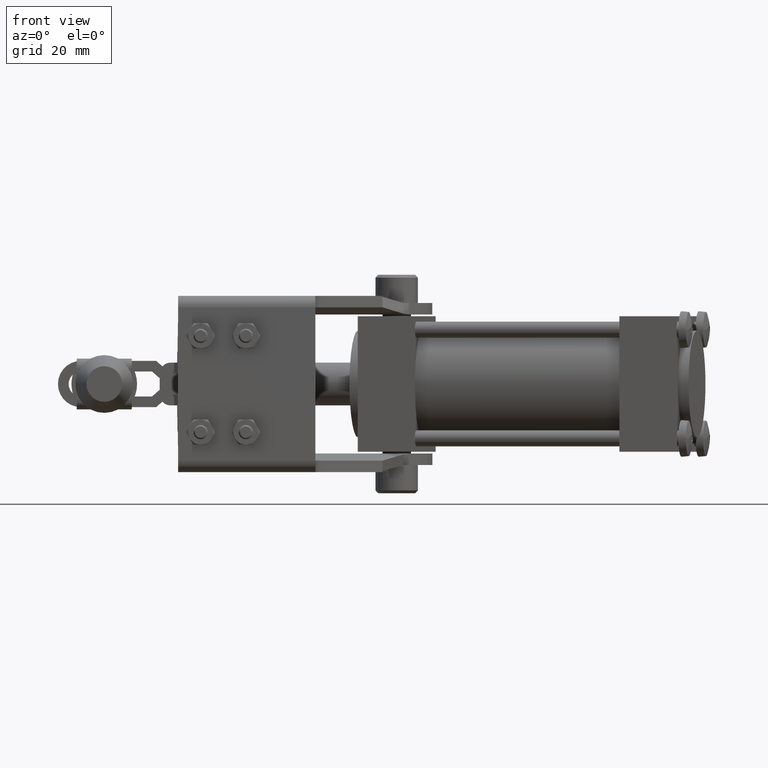
[diagram: clean part render]
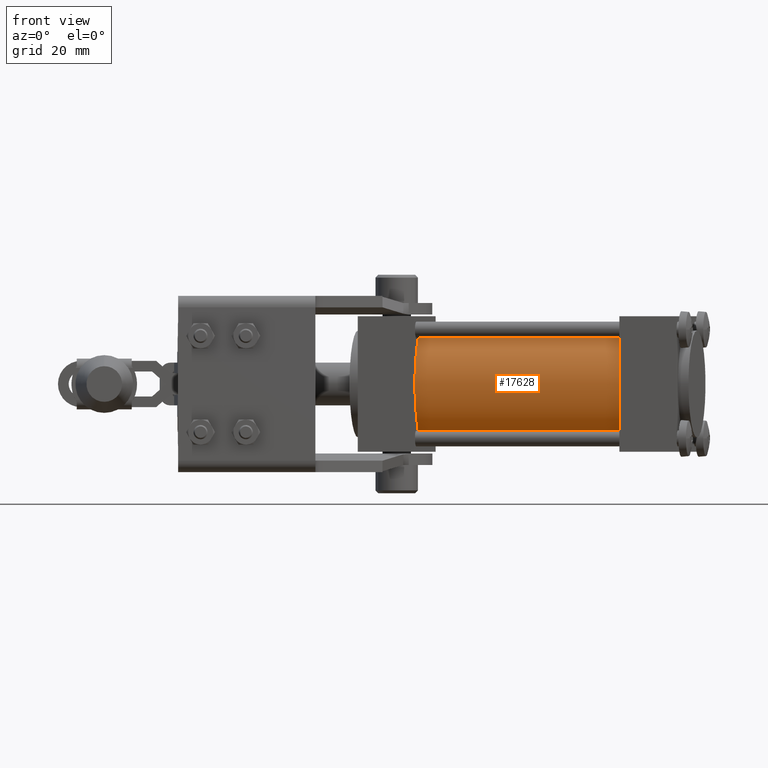
[diagram: same view with one face highlighted and labeled with its STEP entity id]
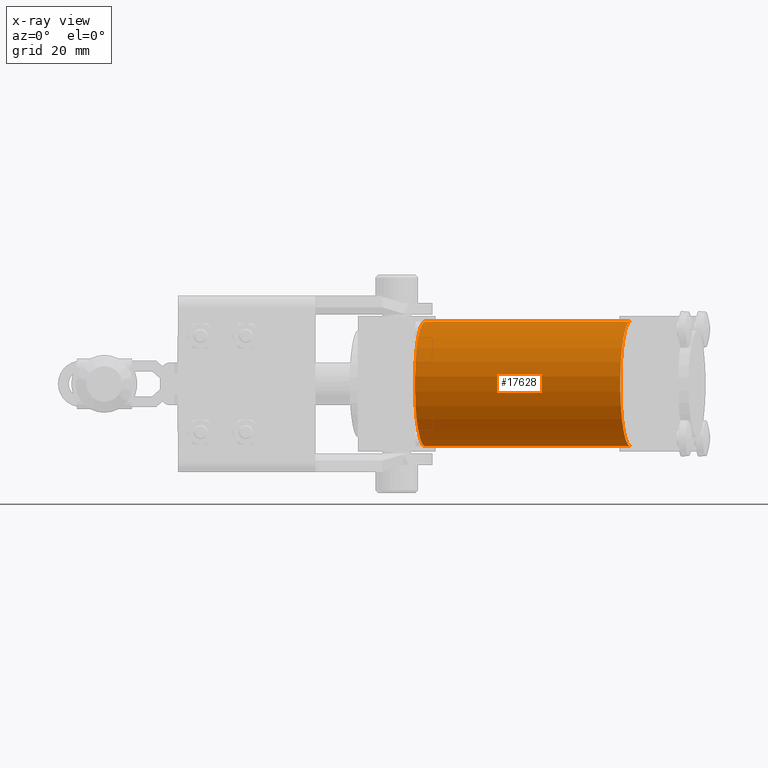
[diagram: x-ray of the same camera — body ghosted, the highlighted face saturated]
A machine part, front view. The second image highlights one B-rep face of the part: STEP entity #17628.
The next image is the same camera in x-ray: the body ghosted, the highlighted face saturated — about 0% of this face is hidden behind the body in this view.
In plain terms, the highlighted cylindrical surface (partial cylindrical patch) has radius 17.5 mm, axis along (-0.9874, 0.1585, 0).
Its self-contained STEP definition (entity closure, byte-faithful):
#1066 = CIRCLE ( 'NONE', #27431, 17.50000000000000400 ) ;
#2569 = CARTESIAN_POINT ( 'NONE',  ( 84.76141011191855100, 29.48839754560451400, -1.809237422234682100E-013 ) ) ;
#2691 = DIRECTION ( 'NONE',  ( 0.9873515853984645700, -0.1585460400361314000, -1.306212789964222800E-016 ) ) ;
#3184 = CARTESIAN_POINT ( 'NONE',  ( 84.76141011191929000, 29.48839754560913200, -17.50000000000018500 ) ) ;
#4716 = VERTEX_POINT ( 'NONE', #18073 ) ;
#5008 = CARTESIAN_POINT ( 'NONE',  ( 27.19881268318805600, 38.73163167971097900, -1.733085216579767900E-013 ) ) ;
#7181 = VERTEX_POINT ( 'NONE', #16638 ) ;
#7500 = DIRECTION ( 'NONE',  ( -4.202987164652377500E-014, -2.638762224600148300E-013, 1.000000000000000000 ) ) ;
#8092 = CARTESIAN_POINT ( 'NONE',  ( 27.19881268318731300, 38.73163167970636100, 17.49999999999983300 ) ) ;
#10464 = EDGE_CURVE ( 'NONE', #11535, #4716, #17350, .T. ) ;
#11535 = VERTEX_POINT ( 'NONE', #24466 ) ;
#12065 = EDGE_CURVE ( 'NONE', #11535, #24759, #28332, .T. ) ;
#12088 = DIRECTION ( 'NONE',  ( 4.202987164652377500E-014, 2.638762224600148300E-013, -1.000000000000000000 ) ) ;
#12572 = EDGE_CURVE ( 'NONE', #24759, #7181, #1066, .T. ) ;
#13403 = FACE_OUTER_BOUND ( 'NONE', #29260, .T. ) ;
#13571 = CARTESIAN_POINT ( 'NONE',  ( 84.76141011191781200, 29.48839754559989500, 17.49999999999982600 ) ) ;
#14585 = DIRECTION ( 'NONE',  ( -0.9873515853984645700, 0.1585460400361314000, 1.306212789964222800E-016 ) ) ;
#15010 = ORIENTED_EDGE ( 'NONE', *, *, #12065, .T. ) ;
#16638 = CARTESIAN_POINT ( 'NONE',  ( 27.19881268318879800, 38.73163167971559100, -17.50000000000017800 ) ) ;
#17350 = CIRCLE ( 'NONE', #22936, 17.50000000000000400 ) ;
#17628 = ADVANCED_FACE ( 'NONE', ( #13403 ), #22383, .T. ) ;
#18073 = CARTESIAN_POINT ( 'NONE',  ( 84.76141011191929000, 29.48839754560913200, -17.50000000000018500 ) ) ;
#18791 = ORIENTED_EDGE ( 'NONE', *, *, #19647, .F. ) ;
#19647 = EDGE_CURVE ( 'NONE', #4716, #7181, #29301, .T. ) ;
#20614 = ORIENTED_EDGE ( 'NONE', *, *, #10464, .F. ) ;
#21467 = VECTOR ( 'NONE', #27178, 999.9999999999998900 ) ;
#22019 = VECTOR ( 'NONE', #30696, 999.9999999999998900 ) ;
#22383 = CYLINDRICAL_SURFACE ( 'NONE', #26227, 17.50000000000000400 ) ;
#22936 = AXIS2_PLACEMENT_3D ( 'NONE', #23355, #2691, #12088 ) ;
#23355 = CARTESIAN_POINT ( 'NONE',  ( 84.76141011191855100, 29.48839754560451400, -1.809237422234682100E-013 ) ) ;
#24466 = CARTESIAN_POINT ( 'NONE',  ( 84.76141011191781200, 29.48839754559989500, 17.49999999999982600 ) ) ;
#24759 = VERTEX_POINT ( 'NONE', #8092 ) ;
#25675 = DIRECTION ( 'NONE',  ( 4.222812575806398100E-014, 2.640744765715550300E-013, -1.000000000000000000 ) ) ;
#26227 = AXIS2_PLACEMENT_3D ( 'NONE', #2569, #14585, #7500 ) ;
#26633 = ORIENTED_EDGE ( 'NONE', *, *, #12572, .T. ) ;
#27178 = DIRECTION ( 'NONE',  ( -0.9873515853984646800, 0.1585460400361314300, 1.306212789964223100E-016 ) ) ;
#27431 = AXIS2_PLACEMENT_3D ( 'NONE', #5008, #28543, #25675 ) ;
#28332 = LINE ( 'NONE', #13571, #22019 ) ;
#28543 = DIRECTION ( 'NONE',  ( 0.9873515853984645700, -0.1585460400361314000, -1.306212789964222800E-016 ) ) ;
#29260 = EDGE_LOOP ( 'NONE', ( #18791, #20614, #15010, #26633 ) ) ;
#29301 = LINE ( 'NONE', #3184, #21467 ) ;
#30696 = DIRECTION ( 'NONE',  ( -0.9873515853984646800, 0.1585460400361314300, 1.306212789964223100E-016 ) ) ;